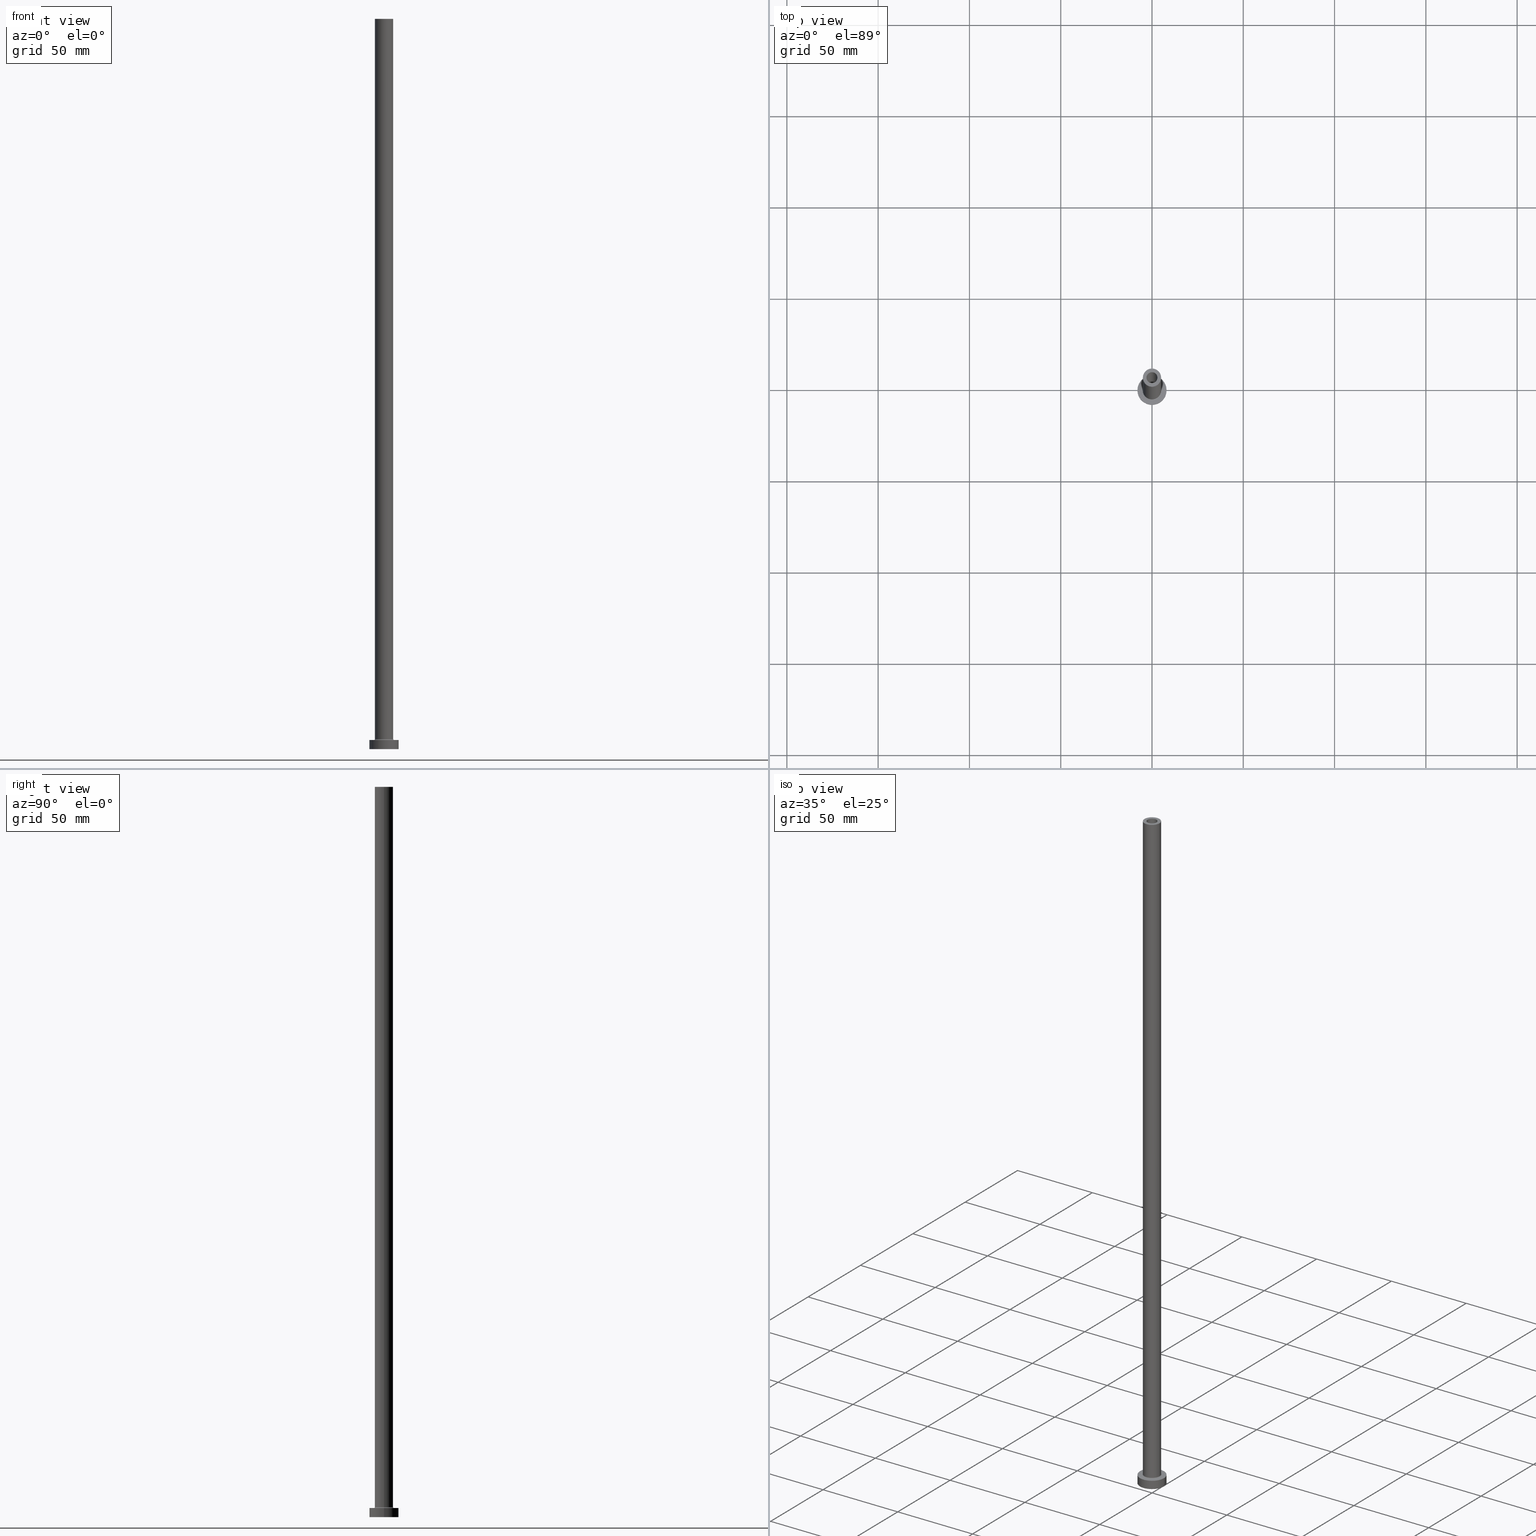
[diagram: canonical four-view strip — front | top / right | iso, engineering-drawing reading convention]
A machine part, canonical four-view strip (front | top / right | iso — engineering-drawing reading convention). The complete STEP part file that produces these views, byte-faithful:
ISO-10303-21;
HEADER;
FILE_DESCRIPTION (( 'STEP AP203' ),
    '1' );
FILE_NAME ('e7fd.STEP',
    '2023-02-13T15:30:35',
    ( '' ),
    ( '' ),
    'SwSTEP 2.0',
    'SolidWorks 2019',
    '' );
FILE_SCHEMA (( 'CONFIG_CONTROL_DESIGN' ));
ENDSEC;

DATA;
#1 = DIRECTION ( 'NONE',  ( -0.000000000000000000, -0.000000000000000000, -1.000000000000000000 ) ) ;
#2 = APPROVAL ( #155, 'NEUR�EN�' ) ;
#3 = DIRECTION ( 'NONE',  ( 1.000000000000000000, 0.000000000000000000, 0.000000000000000000 ) ) ;
#4 = DIRECTION ( 'NONE',  ( 0.000000000000000000, 0.000000000000000000, -1.000000000000000000 ) ) ;
#5 = CC_DESIGN_PERSON_AND_ORGANIZATION_ASSIGNMENT ( #437, #221, ( #380 ) ) ;
#6 = EDGE_LOOP ( 'NONE', ( #82, #49, #154, #223 ) ) ;
#7 = COORDINATED_UNIVERSAL_TIME_OFFSET ( 1, 0, .AHEAD. ) ;
#8 = CYLINDRICAL_SURFACE ( 'NONE', #412, 8.000000000000000000 ) ;
#9 = ORIENTED_EDGE ( 'NONE', *, *, #351, .T. ) ;
#10 = AXIS2_PLACEMENT_3D ( 'NONE', #343, #196, #379 ) ;
#11 = AXIS2_PLACEMENT_3D ( 'NONE', #355, #38, #357 ) ;
#12 = DIRECTION ( 'NONE',  ( -1.000000000000000000, 0.000000000000000000, 0.000000000000000000 ) ) ;
#13 = VERTEX_POINT ( 'NONE', #57 ) ;
#14 = CALENDAR_DATE ( 2023, 13, 2 ) ;
#15 = EDGE_LOOP ( 'NONE', ( #124, #215, #95, #52 ) ) ;
#16 = AXIS2_PLACEMENT_3D ( 'NONE', #311, #100, #263 ) ;
#17 = CARTESIAN_POINT ( 'NONE',  ( 0.000000000000000000, 0.000000000000000000, 0.000000000000000000 ) ) ;
#18 = AXIS2_PLACEMENT_3D ( 'NONE', #110, #281, #319 ) ;
#19 = FACE_BOUND ( 'NONE', #217, .T. ) ;
#20 = DIRECTION ( 'NONE',  ( 0.000000000000000000, 0.000000000000000000, 1.000000000000000000 ) ) ;
#21 = FACE_BOUND ( 'NONE', #230, .T. ) ;
#22 = ADVANCED_FACE ( 'NONE', ( #19, #170 ), #233, .T. ) ;
#23 = CARTESIAN_POINT ( 'NONE',  ( 0.000000000000000000, 0.000000000000000000, 5.500000000000005329 ) ) ;
#24 = ORIENTED_EDGE ( 'NONE', *, *, #402, .T. ) ;
#25 = LINE ( 'NONE', #455, #168 ) ;
#26 = DIRECTION ( 'NONE',  ( 1.000000000000000000, 0.000000000000000000, 0.000000000000000000 ) ) ;
#27 = AXIS2_PLACEMENT_3D ( 'NONE', #278, #137, #249 ) ;
#28 = LINE ( 'NONE', #265, #415 ) ;
#29 = ADVANCED_FACE ( 'NONE', ( #450 ), #98, .T. ) ;
#30 = CARTESIAN_POINT ( 'NONE',  ( 0.000000000000000000, 0.000000000000000000, 400.0000000000000000 ) ) ;
#31 = DIRECTION ( 'NONE',  ( 0.000000000000000000, 0.000000000000000000, -1.000000000000000000 ) ) ;
#32 = LOCAL_TIME ( 16, 30, 35.00000000000000000, #186 ) ;
#33 =( LENGTH_UNIT ( ) NAMED_UNIT ( * ) SI_UNIT ( .MILLI., .METRE. ) );
#34 = EDGE_CURVE ( 'NONE', #181, #55, #179, .T. ) ;
#35 = ORIENTED_EDGE ( 'NONE', *, *, #134, .T. ) ;
#36 = CYLINDRICAL_SURFACE ( 'NONE', #11, 3.150000000000000355 ) ;
#37 = DIRECTION ( 'NONE',  ( -0.000000000000000000, -0.000000000000000000, -1.000000000000000000 ) ) ;
#38 = DIRECTION ( 'NONE',  ( 0.000000000000000000, 0.000000000000000000, -1.000000000000000000 ) ) ;
#39 = AXIS2_PLACEMENT_3D ( 'NONE', #23, #77, #210 ) ;
#40 = ORIENTED_EDGE ( 'NONE', *, *, #402, .F. ) ;
#41 = ADVANCED_FACE ( 'NONE', ( #293 ), #435, .T. ) ;
#42 = AXIS2_PLACEMENT_3D ( 'NONE', #214, #356, #3 ) ;
#43 = DATE_AND_TIME ( #252, #314 ) ;
#44 = VERTEX_POINT ( 'NONE', #90 ) ;
#45 = ORIENTED_EDGE ( 'NONE', *, *, #167, .F. ) ;
#46 = EDGE_LOOP ( 'NONE', ( #206, #176, #40, #406 ) ) ;
#47 = PERSON_AND_ORGANIZATION ( #360, #460 ) ;
#48 = ORIENTED_EDGE ( 'NONE', *, *, #457, .F. ) ;
#49 = ORIENTED_EDGE ( 'NONE', *, *, #272, .T. ) ;
#50 = CIRCLE ( 'NONE', #142, 3.000000000000000444 ) ;
#51 = AXIS2_PLACEMENT_3D ( 'NONE', #241, #386, #66 ) ;
#52 = ORIENTED_EDGE ( 'NONE', *, *, #54, .F. ) ;
#53 = DIRECTION ( 'NONE',  ( 1.000000000000000000, 0.000000000000000000, -0.000000000000000000 ) ) ;
#54 = EDGE_CURVE ( 'NONE', #191, #219, #228, .T. ) ;
#55 = VERTEX_POINT ( 'NONE', #364 ) ;
#56 = CARTESIAN_POINT ( 'NONE',  ( 0.000000000000000000, 0.000000000000000000, 355.0000000000000568 ) ) ;
#57 = CARTESIAN_POINT ( 'NONE',  ( 8.000000000000000000, 9.797174393178825657E-16, 0.000000000000000000 ) ) ;
#58 = DIRECTION ( 'NONE',  ( -1.000000000000000000, 1.224646799147351482E-16, 0.000000000000000000 ) ) ;
#59 = ADVANCED_FACE ( 'NONE', ( #327 ), #8, .T. ) ;
#60 = AXIS2_PLACEMENT_3D ( 'NONE', #334, #20, #163 ) ;
#61 = APPROVAL_PERSON_ORGANIZATION ( #224, #2, #370 ) ;
#62 = DIRECTION ( 'NONE',  ( 1.000000000000000000, 0.000000000000000000, 0.000000000000000000 ) ) ;
#63 = DIRECTION ( 'NONE',  ( -1.000000000000000000, 0.000000000000000000, 0.000000000000000000 ) ) ;
#64 = CARTESIAN_POINT ( 'NONE',  ( -5.000000000000000000, 0.000000000000000000, 5.500000000000005329 ) ) ;
#65 = DIRECTION ( 'NONE',  ( -0.000000000000000000, -0.000000000000000000, -1.000000000000000000 ) ) ;
#66 = DIRECTION ( 'NONE',  ( 1.000000000000000000, 0.000000000000000000, 0.000000000000000000 ) ) ;
#67 =( GEOMETRIC_REPRESENTATION_CONTEXT ( 3 ) GLOBAL_UNCERTAINTY_ASSIGNED_CONTEXT ( ( #231 ) ) GLOBAL_UNIT_ASSIGNED_CONTEXT ( ( #33, #365, #286 ) ) REPRESENTATION_CONTEXT ( 'NONE', 'WORKASPACE' ) );
#68 = DIRECTION ( 'NONE',  ( 0.000000000000000000, 0.000000000000000000, 1.000000000000000000 ) ) ;
#69 = CARTESIAN_POINT ( 'NONE',  ( -5.500000000000000000, 6.735557395310442023E-16, 5.000000000000002665 ) ) ;
#70 = DIRECTION ( 'NONE',  ( 0.000000000000000000, 0.000000000000000000, -1.000000000000000000 ) ) ;
#71 = CARTESIAN_POINT ( 'NONE',  ( -5.500000000000000000, 6.735557395310442023E-16, 5.500000000000005329 ) ) ;
#72 = VECTOR ( 'NONE', #37, 1000.000000000000000 ) ;
#73 = ADVANCED_FACE ( 'NONE', ( #213, #387 ), #368, .F. ) ;
#74 = FACE_OUTER_BOUND ( 'NONE', #326, .T. ) ;
#75 = DIRECTION ( 'NONE',  ( -0.000000000000000000, -0.000000000000000000, -1.000000000000000000 ) ) ;
#76 = AXIS2_PLACEMENT_3D ( 'NONE', #418, #133, #244 ) ;
#77 = DIRECTION ( 'NONE',  ( 0.000000000000000000, 0.000000000000000000, 1.000000000000000000 ) ) ;
#78 = APPLICATION_CONTEXT ( 'configuration controlled 3d designs of mechanical parts and assemblies' ) ;
#79 = CARTESIAN_POINT ( 'NONE',  ( 3.150000000000000355, 3.857637417314163182E-16, 363.9095454429505594 ) ) ;
#80 = ADVANCED_FACE ( 'NONE', ( #350 ), #348, .F. ) ;
#81 = PERSON_AND_ORGANIZATION_ROLE ( 'design_owner' ) ;
#82 = ORIENTED_EDGE ( 'NONE', *, *, #279, .T. ) ;
#83 = VERTEX_POINT ( 'NONE', #69 ) ;
#84 = MECHANICAL_CONTEXT ( 'NONE', #237, 'mechanical' ) ;
#85 = ORIENTED_EDGE ( 'NONE', *, *, #310, .T. ) ;
#86 = APPLICATION_PROTOCOL_DEFINITION ( 'international standard', 'config_control_design', 1994, #237 ) ;
#87 = PRODUCT_DEFINITION ( 'NEZN�M�', '', #380, #194 ) ;
#88 = AXIS2_PLACEMENT_3D ( 'NONE', #392, #425, #107 ) ;
#89 = COORDINATED_UNIVERSAL_TIME_OFFSET ( 1, 0, .AHEAD. ) ;
#90 = CARTESIAN_POINT ( 'NONE',  ( -3.000000000000000444, 0.000000000000000000, 400.0000000000000000 ) ) ;
#91 = EDGE_LOOP ( 'NONE', ( #413, #143 ) ) ;
#92 = CC_DESIGN_DATE_AND_TIME_ASSIGNMENT ( #222, #403, ( #87 ) ) ;
#93 = CARTESIAN_POINT ( 'NONE',  ( -5.000000000000000000, 0.000000000000000000, 400.0000000000000000 ) ) ;
#94 = ORIENTED_EDGE ( 'NONE', *, *, #351, .F. ) ;
#95 = ORIENTED_EDGE ( 'NONE', *, *, #127, .T. ) ;
#96 = SECURITY_CLASSIFICATION ( '', '', #216 ) ;
#97 = PLANE ( 'NONE',  #131 ) ;
#98 = CYLINDRICAL_SURFACE ( 'NONE', #337, 8.000000000000000000 ) ;
#99 = DIRECTION ( 'NONE',  ( 0.000000000000000000, 0.000000000000000000, -1.000000000000000000 ) ) ;
#100 = DIRECTION ( 'NONE',  ( -0.000000000000000000, -0.000000000000000000, -1.000000000000000000 ) ) ;
#101 = DIRECTION ( 'NONE',  ( 1.000000000000000000, 0.000000000000000000, 0.000000000000000000 ) ) ;
#102 = CARTESIAN_POINT ( 'NONE',  ( 5.000000000000000000, 6.123233995736765296E-16, 5.500000000000005329 ) ) ;
#103 = AXIS2_PLACEMENT_3D ( 'NONE', #130, #308, #101 ) ;
#104 = DIRECTION ( 'NONE',  ( -1.000000000000000000, 0.000000000000000000, 0.000000000000000000 ) ) ;
#105 = CYLINDRICAL_SURFACE ( 'NONE', #345, 5.000000000000000000 ) ;
#106 = EDGE_CURVE ( 'NONE', #219, #83, #115, .T. ) ;
#107 = DIRECTION ( 'NONE',  ( 1.000000000000000000, 0.000000000000000000, 0.000000000000000000 ) ) ;
#108 = ORIENTED_EDGE ( 'NONE', *, *, #106, .F. ) ;
#109 = AXIS2_PLACEMENT_3D ( 'NONE', #438, #332, #12 ) ;
#110 = CARTESIAN_POINT ( 'NONE',  ( 5.500000000000000000, 0.000000000000000000, 5.500000000000005329 ) ) ;
#111 = CIRCLE ( 'NONE', #51, 3.000000000000000444 ) ;
#112 = LINE ( 'NONE', #321, #253 ) ;
#113 = DIRECTION ( 'NONE',  ( 0.000000000000000000, 0.000000000000000000, 1.000000000000000000 ) ) ;
#114 = EDGE_CURVE ( 'NONE', #219, #156, #441, .T. ) ;
#115 = CIRCLE ( 'NONE', #166, 0.5000000000000004441 ) ;
#116 = DIRECTION ( 'NONE',  ( 0.000000000000000000, 0.000000000000000000, 1.000000000000000000 ) ) ;
#117 = LOCAL_TIME ( 16, 30, 35.00000000000000000, #190 ) ;
#118 = DATE_TIME_ROLE ( 'classification_date' ) ;
#119 = CARTESIAN_POINT ( 'NONE',  ( -5.000000000000000000, 0.000000000000000000, 400.0000000000000000 ) ) ;
#120 = ORIENTED_EDGE ( 'NONE', *, *, #34, .F. ) ;
#121 = ORIENTED_EDGE ( 'NONE', *, *, #429, .T. ) ;
#122 = CC_DESIGN_PERSON_AND_ORGANIZATION_ASSIGNMENT ( #47, #408, ( #87 ) ) ;
#123 = APPROVAL_STATUS ( 'not_yet_approved' ) ;
#124 = ORIENTED_EDGE ( 'NONE', *, *, #212, .F. ) ;
#125 = SHAPE_DEFINITION_REPRESENTATION ( #395, #273 ) ;
#126 = AXIS2_PLACEMENT_3D ( 'NONE', #165, #201, #26 ) ;
#127 = EDGE_CURVE ( 'NONE', #156, #219, #407, .T. ) ;
#128 = ORIENTED_EDGE ( 'NONE', *, *, #178, .T. ) ;
#129 = CARTESIAN_POINT ( 'NONE',  ( -3.150000000000000355, 0.000000000000000000, 0.000000000000000000 ) ) ;
#130 = CARTESIAN_POINT ( 'NONE',  ( 0.000000000000000000, 0.000000000000000000, 0.000000000000000000 ) ) ;
#131 = AXIS2_PLACEMENT_3D ( 'NONE', #17, #306, #382 ) ;
#132 = CC_DESIGN_APPROVAL ( #2, ( #87 ) ) ;
#133 = DIRECTION ( 'NONE',  ( 0.000000000000000000, 0.000000000000000000, 1.000000000000000000 ) ) ;
#134 = EDGE_CURVE ( 'NONE', #436, #187, #353, .T. ) ;
#135 = DIRECTION ( 'NONE',  ( 0.000000000000000000, 0.000000000000000000, 1.000000000000000000 ) ) ;
#136 = DIRECTION ( 'NONE',  ( 0.000000000000000000, 0.000000000000000000, 1.000000000000000000 ) ) ;
#137 = DIRECTION ( 'NONE',  ( -0.000000000000000000, -0.000000000000000000, -1.000000000000000000 ) ) ;
#138 = TOROIDAL_SURFACE ( 'NONE', #42, 5.500000000000000000, 0.5000000000000000000 ) ;
#139 = LINE ( 'NONE', #180, #372 ) ;
#140 = DIRECTION ( 'NONE',  ( -0.000000000000000000, -0.000000000000000000, -1.000000000000000000 ) ) ;
#141 = DIRECTION ( 'NONE',  ( 1.000000000000000000, 0.000000000000000000, 0.000000000000000000 ) ) ;
#142 = AXIS2_PLACEMENT_3D ( 'NONE', #162, #302, #448 ) ;
#143 = ORIENTED_EDGE ( 'NONE', *, *, #457, .T. ) ;
#144 = CARTESIAN_POINT ( 'NONE',  ( -8.000000000000000000, 0.000000000000000000, 0.000000000000000000 ) ) ;
#145 = VERTEX_POINT ( 'NONE', #271 ) ;
#146 = APPROVAL_ROLE ( '' ) ;
#147 = ORIENTED_EDGE ( 'NONE', *, *, #272, .F. ) ;
#148 = CARTESIAN_POINT ( 'NONE',  ( 0.000000000000000000, 0.000000000000000000, 0.000000000000000000 ) ) ;
#149 = VERTEX_POINT ( 'NONE', #346 ) ;
#150 = CARTESIAN_POINT ( 'NONE',  ( 0.000000000000000000, 0.000000000000000000, 5.000000000000000000 ) ) ;
#151 = EDGE_CURVE ( 'NONE', #149, #156, #28, .T. ) ;
#152 = VERTEX_POINT ( 'NONE', #198 ) ;
#153 = APPROVAL_PERSON_ORGANIZATION ( #255, #220, #374 ) ;
#154 = ORIENTED_EDGE ( 'NONE', *, *, #204, .F. ) ;
#155 = APPROVAL_STATUS ( 'not_yet_approved' ) ;
#156 = VERTEX_POINT ( 'NONE', #102 ) ;
#157 = ADVANCED_FACE ( 'NONE', ( #21, #239 ), #97, .F. ) ;
#158 = EDGE_LOOP ( 'NONE', ( #24, #369 ) ) ;
#159 = VERTEX_POINT ( 'NONE', #171 ) ;
#160 = VECTOR ( 'NONE', #1, 1000.000000000000000 ) ;
#161 = ORIENTED_EDGE ( 'NONE', *, *, #284, .T. ) ;
#162 = CARTESIAN_POINT ( 'NONE',  ( 0.000000000000000000, 0.000000000000000000, 400.0000000000000000 ) ) ;
#163 = DIRECTION ( 'NONE',  ( 1.000000000000000000, 0.000000000000000000, 0.000000000000000000 ) ) ;
#164 = VERTEX_POINT ( 'NONE', #453 ) ;
#165 = CARTESIAN_POINT ( 'NONE',  ( 0.000000000000000000, 0.000000000000000000, 5.500000000000005329 ) ) ;
#166 = AXIS2_PLACEMENT_3D ( 'NONE', #71, #301, #58 ) ;
#167 = EDGE_CURVE ( 'NONE', #83, #164, #209, .T. ) ;
#168 = VECTOR ( 'NONE', #268, 1000.000000000000000 ) ;
#169 = DIRECTION ( 'NONE',  ( 0.000000000000000000, 0.000000000000000000, -1.000000000000000000 ) ) ;
#170 = FACE_OUTER_BOUND ( 'NONE', #254, .T. ) ;
#171 = CARTESIAN_POINT ( 'NONE',  ( -3.150000000000000355, 0.000000000000000000, 355.0000000000000568 ) ) ;
#172 = ADVANCED_FACE ( 'NONE', ( #420, #203 ), #419, .T. ) ;
#173 = DIRECTION ( 'NONE',  ( 0.000000000000000000, 0.000000000000000000, 1.000000000000000000 ) ) ;
#174 = FACE_OUTER_BOUND ( 'NONE', #285, .T. ) ;
#175 = DIRECTION ( 'NONE',  ( 1.000000000000000000, 0.000000000000000000, 0.000000000000000000 ) ) ;
#176 = ORIENTED_EDGE ( 'NONE', *, *, #106, .T. ) ;
#177 = LINE ( 'NONE', #205, #160 ) ;
#178 = EDGE_CURVE ( 'NONE', #145, #44, #50, .T. ) ;
#179 = CIRCLE ( 'NONE', #399, 3.150000000000000355 ) ;
#180 = CARTESIAN_POINT ( 'NONE',  ( -3.150000000000000355, 0.000000000000000000, 363.9095454429505594 ) ) ;
#181 = VERTEX_POINT ( 'NONE', #129 ) ;
#182 = APPROVAL_STATUS ( 'not_yet_approved' ) ;
#183 = ORIENTED_EDGE ( 'NONE', *, *, #284, .F. ) ;
#184 = PERSON_AND_ORGANIZATION ( #360, #460 ) ;
#185 = EDGE_CURVE ( 'NONE', #55, #181, #300, .T. ) ;
#186 = COORDINATED_UNIVERSAL_TIME_OFFSET ( 1, 0, .AHEAD. ) ;
#187 = VERTEX_POINT ( 'NONE', #340 ) ;
#188 = CARTESIAN_POINT ( 'NONE',  ( 0.000000000000000000, 0.000000000000000000, 355.0000000000000568 ) ) ;
#189 = AXIS2_PLACEMENT_3D ( 'NONE', #459, #68, #391 ) ;
#190 = COORDINATED_UNIVERSAL_TIME_OFFSET ( 1, 0, .AHEAD. ) ;
#191 = VERTEX_POINT ( 'NONE', #93 ) ;
#192 = ORIENTED_EDGE ( 'NONE', *, *, #303, .F. ) ;
#193 = CARTESIAN_POINT ( 'NONE',  ( 0.000000000000000000, 0.000000000000000000, 5.500000000000005329 ) ) ;
#194 = DESIGN_CONTEXT ( 'detailed design', #78, 'design' ) ;
#195 = ORIENTED_EDGE ( 'NONE', *, *, #127, .F. ) ;
#196 = DIRECTION ( 'NONE',  ( -0.000000000000000000, -0.000000000000000000, -1.000000000000000000 ) ) ;
#197 = VERTEX_POINT ( 'NONE', #240 ) ;
#198 = CARTESIAN_POINT ( 'NONE',  ( 3.150000000000000355, 3.857637417314163182E-16, 355.0000000000000568 ) ) ;
#199 = FACE_OUTER_BOUND ( 'NONE', #46, .T. ) ;
#200 = EDGE_CURVE ( 'NONE', #187, #436, #248, .T. ) ;
#201 = DIRECTION ( 'NONE',  ( 0.000000000000000000, 0.000000000000000000, 1.000000000000000000 ) ) ;
#202 = AXIS2_PLACEMENT_3D ( 'NONE', #383, #136, #62 ) ;
#203 = FACE_OUTER_BOUND ( 'NONE', #246, .T. ) ;
#204 = EDGE_CURVE ( 'NONE', #197, #320, #409, .T. ) ;
#205 = CARTESIAN_POINT ( 'NONE',  ( 8.000000000000000000, 9.797174393178825657E-16, 5.000000000000000000 ) ) ;
#206 = ORIENTED_EDGE ( 'NONE', *, *, #114, .F. ) ;
#207 = DIRECTION ( 'NONE',  ( 0.000000000000000000, 0.000000000000000000, -1.000000000000000000 ) ) ;
#208 = AXIS2_PLACEMENT_3D ( 'NONE', #305, #309, #269 ) ;
#209 = CIRCLE ( 'NONE', #10, 5.500000000000000000 ) ;
#210 = DIRECTION ( 'NONE',  ( 1.000000000000000000, 0.000000000000000000, 0.000000000000000000 ) ) ;
#211 = CYLINDRICAL_SURFACE ( 'NONE', #428, 3.000000000000000444 ) ;
#212 = EDGE_CURVE ( 'NONE', #149, #191, #226, .T. ) ;
#213 = FACE_BOUND ( 'NONE', #91, .T. ) ;
#214 = CARTESIAN_POINT ( 'NONE',  ( 0.000000000000000000, 0.000000000000000000, 5.500000000000005329 ) ) ;
#215 = ORIENTED_EDGE ( 'NONE', *, *, #151, .T. ) ;
#216 = SECURITY_CLASSIFICATION_LEVEL ( 'unclassified' ) ;
#217 = EDGE_LOOP ( 'NONE', ( #318, #229 ) ) ;
#218 = CIRCLE ( 'NONE', #103, 8.000000000000000000 ) ;
#219 = VERTEX_POINT ( 'NONE', #64 ) ;
#220 = APPROVAL ( #123, 'NEUR�EN�' ) ;
#221 = PERSON_AND_ORGANIZATION_ROLE ( 'creator' ) ;
#222 = DATE_AND_TIME ( #14, #117 ) ;
#223 = ORIENTED_EDGE ( 'NONE', *, *, #330, .F. ) ;
#224 = PERSON_AND_ORGANIZATION ( #360, #460 ) ;
#225 = EDGE_LOOP ( 'NONE', ( #192, #287, #121, #381 ) ) ;
#226 = CIRCLE ( 'NONE', #202, 5.000000000000000000 ) ;
#227 = COORDINATED_UNIVERSAL_TIME_OFFSET ( 1, 0, .AHEAD. ) ;
#228 = LINE ( 'NONE', #119, #72 ) ;
#229 = ORIENTED_EDGE ( 'NONE', *, *, #178, .F. ) ;
#230 = EDGE_LOOP ( 'NONE', ( #120, #260 ) ) ;
#231 = UNCERTAINTY_MEASURE_WITH_UNIT (LENGTH_MEASURE( 1.000000000000000082E-05 ), #33, 'distance_accuracy_value', 'NONE');
#232 = DIRECTION ( 'NONE',  ( 1.000000000000000000, 0.000000000000000000, 0.000000000000000000 ) ) ;
#233 = PLANE ( 'NONE',  #208 ) ;
#234 = ORIENTED_EDGE ( 'NONE', *, *, #34, .T. ) ;
#235 = APPROVAL_PERSON_ORGANIZATION ( #323, #344, #146 ) ;
#236 = ADVANCED_FACE ( 'NONE', ( #304 ), #338, .F. ) ;
#237 = APPLICATION_CONTEXT ( 'configuration controlled 3d designs of mechanical parts and assemblies' ) ;
#238 = CC_DESIGN_SECURITY_CLASSIFICATION ( #96, ( #380 ) ) ;
#239 = FACE_OUTER_BOUND ( 'NONE', #256, .T. ) ;
#240 = CARTESIAN_POINT ( 'NONE',  ( -3.000000000000000444, 0.000000000000000000, 355.0000000000000568 ) ) ;
#241 = CARTESIAN_POINT ( 'NONE',  ( 0.000000000000000000, 0.000000000000000000, 400.0000000000000000 ) ) ;
#242 = PRODUCT ( 'e7fd', 'e7fd', '', ( #84 ) ) ;
#243 = AXIS2_PLACEMENT_3D ( 'NONE', #458, #410, #414 ) ;
#244 = DIRECTION ( 'NONE',  ( 1.000000000000000000, 0.000000000000000000, -0.000000000000000000 ) ) ;
#245 = CARTESIAN_POINT ( 'NONE',  ( 0.000000000000000000, 0.000000000000000000, 355.0000000000000568 ) ) ;
#246 = EDGE_LOOP ( 'NONE', ( #341, #35 ) ) ;
#247 = EDGE_CURVE ( 'NONE', #371, #13, #218, .T. ) ;
#248 = CIRCLE ( 'NONE', #243, 8.000000000000000000 ) ;
#249 = DIRECTION ( 'NONE',  ( 1.000000000000000000, 0.000000000000000000, 0.000000000000000000 ) ) ;
#250 = ORIENTED_EDGE ( 'NONE', *, *, #421, .F. ) ;
#251 = ADVANCED_FACE ( 'NONE', ( #199 ), #361, .F. ) ;
#252 = CALENDAR_DATE ( 2023, 13, 2 ) ;
#253 = VECTOR ( 'NONE', #207, 1000.000000000000000 ) ;
#254 = EDGE_LOOP ( 'NONE', ( #85, #324 ) ) ;
#255 = PERSON_AND_ORGANIZATION ( #360, #460 ) ;
#256 = EDGE_LOOP ( 'NONE', ( #299, #250 ) ) ;
#257 = CALENDAR_DATE ( 2023, 13, 2 ) ;
#258 = DIRECTION ( 'NONE',  ( 0.000000000000000000, 0.000000000000000000, 1.000000000000000000 ) ) ;
#259 = PRODUCT_RELATED_PRODUCT_CATEGORY ( 'detail', '', ( #242 ) ) ;
#260 = ORIENTED_EDGE ( 'NONE', *, *, #185, .F. ) ;
#261 = ORIENTED_EDGE ( 'NONE', *, *, #151, .F. ) ;
#262 = ORIENTED_EDGE ( 'NONE', *, *, #310, .F. ) ;
#263 = DIRECTION ( 'NONE',  ( 1.000000000000000000, 0.000000000000000000, 0.000000000000000000 ) ) ;
#264 = AXIS2_PLACEMENT_3D ( 'NONE', #188, #258, #53 ) ;
#265 = CARTESIAN_POINT ( 'NONE',  ( 5.000000000000000000, 6.123233995736765296E-16, 400.0000000000000000 ) ) ;
#266 = CIRCLE ( 'NONE', #189, 3.150000000000000355 ) ;
#267 = DIRECTION ( 'NONE',  ( -0.000000000000000000, -0.000000000000000000, -1.000000000000000000 ) ) ;
#268 = DIRECTION ( 'NONE',  ( 0.000000000000000000, 0.000000000000000000, -1.000000000000000000 ) ) ;
#269 = DIRECTION ( 'NONE',  ( 1.000000000000000000, 0.000000000000000000, -0.000000000000000000 ) ) ;
#270 = DIRECTION ( 'NONE',  ( -1.000000000000000000, 0.000000000000000000, 0.000000000000000000 ) ) ;
#271 = CARTESIAN_POINT ( 'NONE',  ( 3.000000000000000444, 3.673940397442059868E-16, 400.0000000000000000 ) ) ;
#272 = EDGE_CURVE ( 'NONE', #145, #320, #25, .T. ) ;
#273 = ADVANCED_BREP_SHAPE_REPRESENTATION ( 'e7fd', ( #333, #388 ), #67 ) ;
#274 = CIRCLE ( 'NONE', #329, 8.000000000000000000 ) ;
#275 = AXIS2_PLACEMENT_3D ( 'NONE', #245, #461, #141 ) ;
#276 = CARTESIAN_POINT ( 'NONE',  ( 8.000000000000000000, 9.797174393178825657E-16, 5.000000000000000000 ) ) ;
#277 = CC_DESIGN_APPROVAL ( #220, ( #96 ) ) ;
#278 = CARTESIAN_POINT ( 'NONE',  ( 0.000000000000000000, 0.000000000000000000, 5.000000000000000000 ) ) ;
#279 = EDGE_CURVE ( 'NONE', #44, #145, #111, .T. ) ;
#280 = FACE_OUTER_BOUND ( 'NONE', #6, .T. ) ;
#281 = DIRECTION ( 'NONE',  ( 0.000000000000000000, -1.000000000000000000, 0.000000000000000000 ) ) ;
#282 = CIRCLE ( 'NONE', #275, 3.150000000000000355 ) ;
#283 = FACE_OUTER_BOUND ( 'NONE', #423, .T. ) ;
#284 = EDGE_CURVE ( 'NONE', #159, #181, #139, .T. ) ;
#285 = EDGE_LOOP ( 'NONE', ( #261, #262, #358, #404 ) ) ;
#286 =( NAMED_UNIT ( * ) SI_UNIT ( $, .STERADIAN. ) SOLID_ANGLE_UNIT ( ) );
#287 = ORIENTED_EDGE ( 'NONE', *, *, #200, .F. ) ;
#288 = ORIENTED_EDGE ( 'NONE', *, *, #421, .T. ) ;
#289 = ORIENTED_EDGE ( 'NONE', *, *, #429, .F. ) ;
#290 = CALENDAR_DATE ( 2023, 13, 2 ) ;
#291 = ORIENTED_EDGE ( 'NONE', *, *, #303, .T. ) ;
#292 = CC_DESIGN_APPROVAL ( #344, ( #380 ) ) ;
#293 = FACE_OUTER_BOUND ( 'NONE', #15, .T. ) ;
#294 = ORIENTED_EDGE ( 'NONE', *, *, #366, .F. ) ;
#295 = PERSON_AND_ORGANIZATION ( #360, #460 ) ;
#296 = ADVANCED_FACE ( 'NONE', ( #74 ), #36, .F. ) ;
#297 = CALENDAR_DATE ( 2023, 13, 2 ) ;
#298 = PERSON_AND_ORGANIZATION_ROLE ( 'design_supplier' ) ;
#299 = ORIENTED_EDGE ( 'NONE', *, *, #247, .F. ) ;
#300 = CIRCLE ( 'NONE', #16, 3.150000000000000355 ) ;
#301 = DIRECTION ( 'NONE',  ( 1.224646799147353207E-16, 1.000000000000000000, -0.000000000000000000 ) ) ;
#302 = DIRECTION ( 'NONE',  ( 0.000000000000000000, 0.000000000000000000, 1.000000000000000000 ) ) ;
#303 = EDGE_CURVE ( 'NONE', #436, #13, #177, .T. ) ;
#304 = FACE_OUTER_BOUND ( 'NONE', #367, .T. ) ;
#305 = CARTESIAN_POINT ( 'NONE',  ( 0.000000000000000000, 0.000000000000000000, 400.0000000000000000 ) ) ;
#306 = DIRECTION ( 'NONE',  ( 0.000000000000000000, 0.000000000000000000, 1.000000000000000000 ) ) ;
#307 = VECTOR ( 'NONE', #31, 1000.000000000000000 ) ;
#308 = DIRECTION ( 'NONE',  ( 0.000000000000000000, 0.000000000000000000, 1.000000000000000000 ) ) ;
#309 = DIRECTION ( 'NONE',  ( 0.000000000000000000, 0.000000000000000000, 1.000000000000000000 ) ) ;
#310 = EDGE_CURVE ( 'NONE', #191, #149, #339, .T. ) ;
#311 = CARTESIAN_POINT ( 'NONE',  ( 0.000000000000000000, 0.000000000000000000, 0.000000000000000000 ) ) ;
#312 = CARTESIAN_POINT ( 'NONE',  ( 3.000000000000000444, 3.673940397442059868E-16, 355.0000000000000568 ) ) ;
#313 = CLOSED_SHELL ( 'NONE', ( #376, #236, #251, #41, #59, #29, #172, #157, #443, #22, #397, #296, #73, #80 ) ) ;
#314 = LOCAL_TIME ( 16, 30, 35.00000000000000000, #89 ) ;
#315 = DIRECTION ( 'NONE',  ( -1.000000000000000000, 0.000000000000000000, 0.000000000000000000 ) ) ;
#316 = CC_DESIGN_PERSON_AND_ORGANIZATION_ASSIGNMENT ( #295, #81, ( #242 ) ) ;
#317 = LINE ( 'NONE', #79, #307 ) ;
#318 = ORIENTED_EDGE ( 'NONE', *, *, #279, .F. ) ;
#319 = DIRECTION ( 'NONE',  ( 0.000000000000000000, 0.000000000000000000, -1.000000000000000000 ) ) ;
#320 = VERTEX_POINT ( 'NONE', #312 ) ;
#321 = CARTESIAN_POINT ( 'NONE',  ( -3.000000000000000444, 0.000000000000000000, 400.0000000000000000 ) ) ;
#322 = AXIS2_PLACEMENT_3D ( 'NONE', #30, #173, #349 ) ;
#323 = PERSON_AND_ORGANIZATION ( #360, #460 ) ;
#324 = ORIENTED_EDGE ( 'NONE', *, *, #212, .T. ) ;
#325 = PERSON_AND_ORGANIZATION ( #360, #460 ) ;
#326 = EDGE_LOOP ( 'NONE', ( #94, #434, #161, #234 ) ) ;
#327 = FACE_OUTER_BOUND ( 'NONE', #373, .T. ) ;
#328 = DATE_AND_TIME ( #297, #32 ) ;
#329 = AXIS2_PLACEMENT_3D ( 'NONE', #431, #113, #175 ) ;
#330 = EDGE_CURVE ( 'NONE', #44, #197, #112, .T. ) ;
#331 = APPROVAL_DATE_TIME ( #405, #220 ) ;
#332 = DIRECTION ( 'NONE',  ( -0.000000000000000000, -0.000000000000000000, -1.000000000000000000 ) ) ;
#333 = MANIFOLD_SOLID_BREP ( 'Odebrat vysunut�m4', #313 ) ;
#334 = CARTESIAN_POINT ( 'NONE',  ( 0.000000000000000000, 0.000000000000000000, 5.000000000000000000 ) ) ;
#335 = APPLICATION_PROTOCOL_DEFINITION ( 'international standard', 'config_control_design', 1994, #78 ) ;
#336 = EDGE_CURVE ( 'NONE', #156, #164, #422, .T. ) ;
#337 = AXIS2_PLACEMENT_3D ( 'NONE', #456, #347, #104 ) ;
#338 = CYLINDRICAL_SURFACE ( 'NONE', #416, 3.150000000000000355 ) ;
#339 = CIRCLE ( 'NONE', #322, 5.000000000000000000 ) ;
#340 = CARTESIAN_POINT ( 'NONE',  ( -8.000000000000000000, 0.000000000000000000, 5.000000000000000000 ) ) ;
#341 = ORIENTED_EDGE ( 'NONE', *, *, #200, .T. ) ;
#342 = AXIS2_PLACEMENT_3D ( 'NONE', #193, #445, #378 ) ;
#343 = CARTESIAN_POINT ( 'NONE',  ( 0.000000000000000000, 0.000000000000000000, 5.000000000000000000 ) ) ;
#344 = APPROVAL ( #182, 'NEUR�EN�' ) ;
#345 = AXIS2_PLACEMENT_3D ( 'NONE', #424, #430, #315 ) ;
#346 = CARTESIAN_POINT ( 'NONE',  ( 5.000000000000000000, 6.123233995736765296E-16, 400.0000000000000000 ) ) ;
#347 = DIRECTION ( 'NONE',  ( -0.000000000000000000, -0.000000000000000000, -1.000000000000000000 ) ) ;
#348 = CYLINDRICAL_SURFACE ( 'NONE', #426, 3.000000000000000444 ) ;
#349 = DIRECTION ( 'NONE',  ( 1.000000000000000000, 0.000000000000000000, 0.000000000000000000 ) ) ;
#350 = FACE_OUTER_BOUND ( 'NONE', #452, .T. ) ;
#351 = EDGE_CURVE ( 'NONE', #152, #55, #317, .T. ) ;
#352 = LINE ( 'NONE', #389, #454 ) ;
#353 = CIRCLE ( 'NONE', #60, 8.000000000000000000 ) ;
#354 = LOCAL_TIME ( 16, 30, 35.00000000000000000, #7 ) ;
#355 = CARTESIAN_POINT ( 'NONE',  ( 0.000000000000000000, 0.000000000000000000, 363.9095454429505594 ) ) ;
#356 = DIRECTION ( 'NONE',  ( 0.000000000000000000, 0.000000000000000000, 1.000000000000000000 ) ) ;
#357 = DIRECTION ( 'NONE',  ( -1.000000000000000000, 0.000000000000000000, 0.000000000000000000 ) ) ;
#358 = ORIENTED_EDGE ( 'NONE', *, *, #54, .T. ) ;
#359 = APPROVAL_DATE_TIME ( #43, #2 ) ;
#360 = PERSON ( 'NEUR�EN�', 'NEUR�EN�', 'NEUR�EN�', ('NEUR�EN�'), ('NEUR�EN�'), ('NEUR�EN�') ) ;
#361 = TOROIDAL_SURFACE ( 'NONE', #126, 5.500000000000000000, 0.5000000000000000000 ) ;
#362 = DIRECTION ( 'NONE',  ( 1.000000000000000000, 0.000000000000000000, 0.000000000000000000 ) ) ;
#363 = APPROVAL_DATE_TIME ( #328, #344 ) ;
#364 = CARTESIAN_POINT ( 'NONE',  ( 3.150000000000000355, 3.857637417314163182E-16, 0.000000000000000000 ) ) ;
#365 =( NAMED_UNIT ( * ) PLANE_ANGLE_UNIT ( ) SI_UNIT ( $, .RADIAN. ) );
#366 = EDGE_CURVE ( 'NONE', #159, #152, #266, .T. ) ;
#367 = EDGE_LOOP ( 'NONE', ( #447, #9, #401, #183 ) ) ;
#368 = PLANE ( 'NONE',  #264 ) ;
#369 = ORIENTED_EDGE ( 'NONE', *, *, #167, .T. ) ;
#370 = APPROVAL_ROLE ( '' ) ;
#371 = VERTEX_POINT ( 'NONE', #144 ) ;
#372 = VECTOR ( 'NONE', #4, 1000.000000000000000 ) ;
#373 = EDGE_LOOP ( 'NONE', ( #432, #291, #288, #289 ) ) ;
#374 = APPROVAL_ROLE ( '' ) ;
#375 = ORIENTED_EDGE ( 'NONE', *, *, #451, .F. ) ;
#376 = ADVANCED_FACE ( 'NONE', ( #280 ), #211, .F. ) ;
#377 = EDGE_LOOP ( 'NONE', ( #294, #375 ) ) ;
#378 = DIRECTION ( 'NONE',  ( 1.000000000000000000, 0.000000000000000000, 0.000000000000000000 ) ) ;
#379 = DIRECTION ( 'NONE',  ( 1.000000000000000000, 0.000000000000000000, 0.000000000000000000 ) ) ;
#380 = PRODUCT_DEFINITION_FORMATION_WITH_SPECIFIED_SOURCE ( 'LIBOVOLN�', '', #242, .NOT_KNOWN. ) ;
#381 = ORIENTED_EDGE ( 'NONE', *, *, #247, .T. ) ;
#382 = DIRECTION ( 'NONE',  ( 1.000000000000000000, 0.000000000000000000, -0.000000000000000000 ) ) ;
#383 = CARTESIAN_POINT ( 'NONE',  ( 0.000000000000000000, 0.000000000000000000, 400.0000000000000000 ) ) ;
#384 = CC_DESIGN_PERSON_AND_ORGANIZATION_ASSIGNMENT ( #325, #440, ( #96 ) ) ;
#385 = CARTESIAN_POINT ( 'NONE',  ( 0.000000000000000000, 0.000000000000000000, 0.000000000000000000 ) ) ;
#386 = DIRECTION ( 'NONE',  ( 0.000000000000000000, 0.000000000000000000, 1.000000000000000000 ) ) ;
#387 = FACE_OUTER_BOUND ( 'NONE', #377, .T. ) ;
#388 = AXIS2_PLACEMENT_3D ( 'NONE', #148, #116, #398 ) ;
#389 = CARTESIAN_POINT ( 'NONE',  ( -8.000000000000000000, 0.000000000000000000, 5.000000000000000000 ) ) ;
#390 = CC_DESIGN_DATE_AND_TIME_ASSIGNMENT ( #442, #118, ( #96 ) ) ;
#391 = DIRECTION ( 'NONE',  ( 1.000000000000000000, 0.000000000000000000, 0.000000000000000000 ) ) ;
#392 = CARTESIAN_POINT ( 'NONE',  ( 0.000000000000000000, 0.000000000000000000, 355.0000000000000568 ) ) ;
#393 = LOCAL_TIME ( 16, 30, 35.00000000000000000, #227 ) ;
#394 = DIRECTION ( 'NONE',  ( -1.000000000000000000, 0.000000000000000000, 0.000000000000000000 ) ) ;
#395 = PRODUCT_DEFINITION_SHAPE ( 'NONE', 'NONE',  #87 ) ;
#396 = CARTESIAN_POINT ( 'NONE',  ( 0.000000000000000000, 0.000000000000000000, 400.0000000000000000 ) ) ;
#397 = ADVANCED_FACE ( 'NONE', ( #283 ), #138, .F. ) ;
#398 = DIRECTION ( 'NONE',  ( 1.000000000000000000, 0.000000000000000000, 0.000000000000000000 ) ) ;
#399 = AXIS2_PLACEMENT_3D ( 'NONE', #385, #65, #362 ) ;
#400 = CIRCLE ( 'NONE', #88, 3.000000000000000444 ) ;
#401 = ORIENTED_EDGE ( 'NONE', *, *, #185, .T. ) ;
#402 = EDGE_CURVE ( 'NONE', #164, #83, #433, .T. ) ;
#403 = DATE_TIME_ROLE ( 'creation_date' ) ;
#404 = ORIENTED_EDGE ( 'NONE', *, *, #114, .T. ) ;
#405 = DATE_AND_TIME ( #257, #393 ) ;
#406 = ORIENTED_EDGE ( 'NONE', *, *, #336, .F. ) ;
#407 = CIRCLE ( 'NONE', #39, 5.000000000000000000 ) ;
#408 = PERSON_AND_ORGANIZATION_ROLE ( 'creator' ) ;
#409 = CIRCLE ( 'NONE', #444, 3.000000000000000444 ) ;
#410 = DIRECTION ( 'NONE',  ( 0.000000000000000000, 0.000000000000000000, 1.000000000000000000 ) ) ;
#411 = CARTESIAN_POINT ( 'NONE',  ( 0.000000000000000000, 0.000000000000000000, 400.0000000000000000 ) ) ;
#412 = AXIS2_PLACEMENT_3D ( 'NONE', #150, #75, #427 ) ;
#413 = ORIENTED_EDGE ( 'NONE', *, *, #204, .T. ) ;
#414 = DIRECTION ( 'NONE',  ( 1.000000000000000000, 0.000000000000000000, 0.000000000000000000 ) ) ;
#415 = VECTOR ( 'NONE', #267, 1000.000000000000000 ) ;
#416 = AXIS2_PLACEMENT_3D ( 'NONE', #449, #169, #63 ) ;
#417 = CC_DESIGN_PERSON_AND_ORGANIZATION_ASSIGNMENT ( #184, #298, ( #380 ) ) ;
#418 = CARTESIAN_POINT ( 'NONE',  ( 0.000000000000000000, 0.000000000000000000, 5.000000000000000000 ) ) ;
#419 = PLANE ( 'NONE',  #76 ) ;
#420 = FACE_BOUND ( 'NONE', #158, .T. ) ;
#421 = EDGE_CURVE ( 'NONE', #13, #371, #274, .T. ) ;
#422 = CIRCLE ( 'NONE', #18, 0.5000000000000004441 ) ;
#423 = EDGE_LOOP ( 'NONE', ( #108, #195, #439, #45 ) ) ;
#424 = CARTESIAN_POINT ( 'NONE',  ( 0.000000000000000000, 0.000000000000000000, 400.0000000000000000 ) ) ;
#425 = DIRECTION ( 'NONE',  ( 0.000000000000000000, 0.000000000000000000, 1.000000000000000000 ) ) ;
#426 = AXIS2_PLACEMENT_3D ( 'NONE', #411, #99, #270 ) ;
#427 = DIRECTION ( 'NONE',  ( -1.000000000000000000, 0.000000000000000000, 0.000000000000000000 ) ) ;
#428 = AXIS2_PLACEMENT_3D ( 'NONE', #396, #70, #394 ) ;
#429 = EDGE_CURVE ( 'NONE', #187, #371, #352, .T. ) ;
#430 = DIRECTION ( 'NONE',  ( -0.000000000000000000, -0.000000000000000000, -1.000000000000000000 ) ) ;
#431 = CARTESIAN_POINT ( 'NONE',  ( 0.000000000000000000, 0.000000000000000000, 0.000000000000000000 ) ) ;
#432 = ORIENTED_EDGE ( 'NONE', *, *, #134, .F. ) ;
#433 = CIRCLE ( 'NONE', #27, 5.500000000000000000 ) ;
#434 = ORIENTED_EDGE ( 'NONE', *, *, #451, .T. ) ;
#435 = CYLINDRICAL_SURFACE ( 'NONE', #109, 5.000000000000000000 ) ;
#436 = VERTEX_POINT ( 'NONE', #276 ) ;
#437 = PERSON_AND_ORGANIZATION ( #360, #460 ) ;
#438 = CARTESIAN_POINT ( 'NONE',  ( 0.000000000000000000, 0.000000000000000000, 400.0000000000000000 ) ) ;
#439 = ORIENTED_EDGE ( 'NONE', *, *, #336, .T. ) ;
#440 = PERSON_AND_ORGANIZATION_ROLE ( 'classification_officer' ) ;
#441 = CIRCLE ( 'NONE', #342, 5.000000000000000000 ) ;
#442 = DATE_AND_TIME ( #290, #354 ) ;
#443 = ADVANCED_FACE ( 'NONE', ( #174 ), #105, .T. ) ;
#444 = AXIS2_PLACEMENT_3D ( 'NONE', #56, #135, #232 ) ;
#445 = DIRECTION ( 'NONE',  ( 0.000000000000000000, 0.000000000000000000, 1.000000000000000000 ) ) ;
#446 = ORIENTED_EDGE ( 'NONE', *, *, #330, .T. ) ;
#447 = ORIENTED_EDGE ( 'NONE', *, *, #366, .T. ) ;
#448 = DIRECTION ( 'NONE',  ( 1.000000000000000000, 0.000000000000000000, 0.000000000000000000 ) ) ;
#449 = CARTESIAN_POINT ( 'NONE',  ( 0.000000000000000000, 0.000000000000000000, 363.9095454429505594 ) ) ;
#450 = FACE_OUTER_BOUND ( 'NONE', #225, .T. ) ;
#451 = EDGE_CURVE ( 'NONE', #152, #159, #282, .T. ) ;
#452 = EDGE_LOOP ( 'NONE', ( #147, #128, #446, #48 ) ) ;
#453 = CARTESIAN_POINT ( 'NONE',  ( 5.500000000000000000, 0.000000000000000000, 5.000000000000002665 ) ) ;
#454 = VECTOR ( 'NONE', #140, 1000.000000000000000 ) ;
#455 = CARTESIAN_POINT ( 'NONE',  ( 3.000000000000000444, 3.673940397442059868E-16, 400.0000000000000000 ) ) ;
#456 = CARTESIAN_POINT ( 'NONE',  ( 0.000000000000000000, 0.000000000000000000, 5.000000000000000000 ) ) ;
#457 = EDGE_CURVE ( 'NONE', #320, #197, #400, .T. ) ;
#458 = CARTESIAN_POINT ( 'NONE',  ( 0.000000000000000000, 0.000000000000000000, 5.000000000000000000 ) ) ;
#459 = CARTESIAN_POINT ( 'NONE',  ( 0.000000000000000000, 0.000000000000000000, 355.0000000000000568 ) ) ;
#460 = ORGANIZATION ( 'NEUR�EN�', 'NEUR�EN�', '' ) ;
#461 = DIRECTION ( 'NONE',  ( 0.000000000000000000, 0.000000000000000000, 1.000000000000000000 ) ) ;
ENDSEC;
END-ISO-10303-21;
